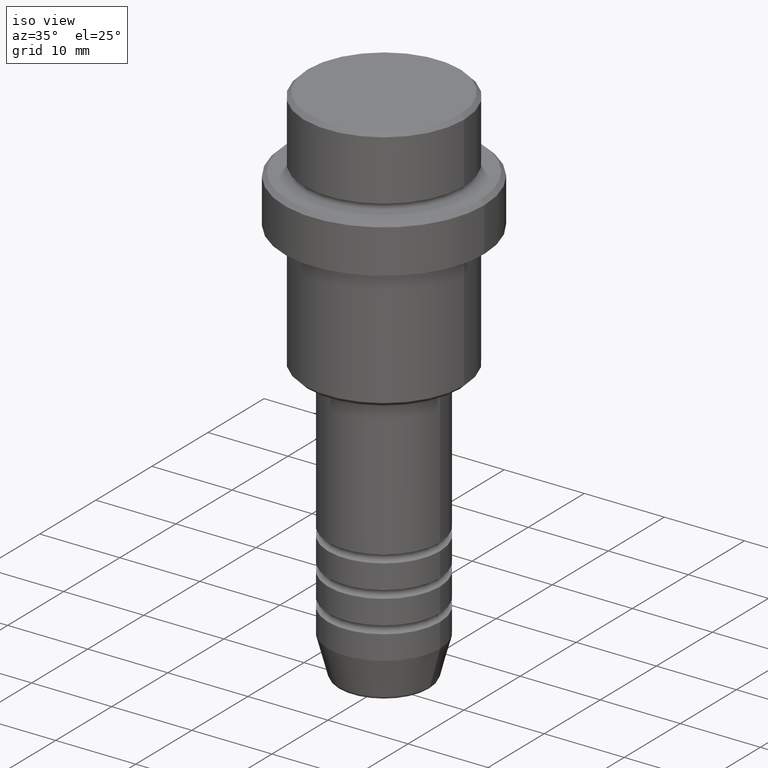
[diagram: clean part render]
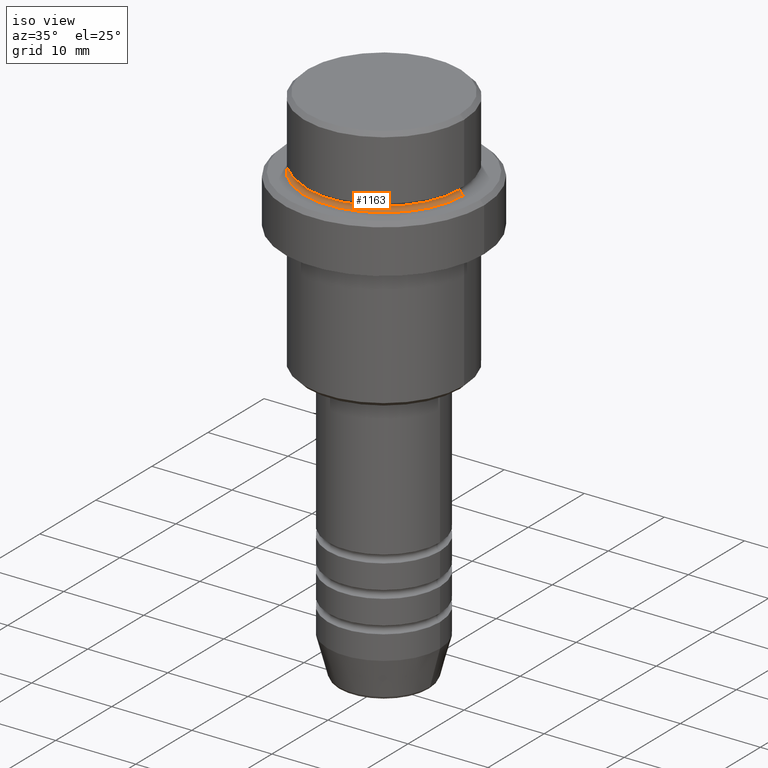
[diagram: same view with one face highlighted and labeled with its STEP entity id]
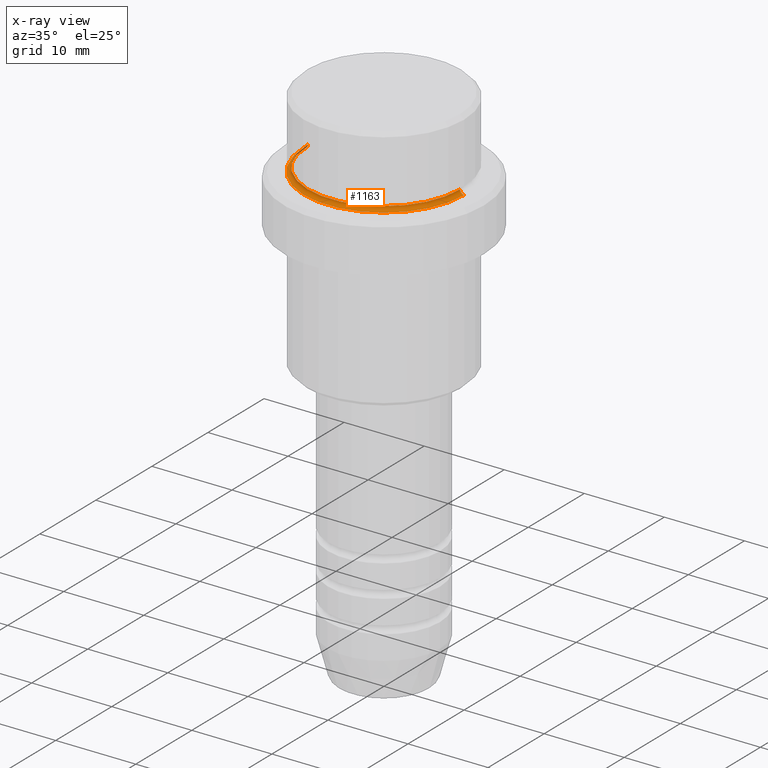
[diagram: x-ray of the same camera — body ghosted, the highlighted face saturated]
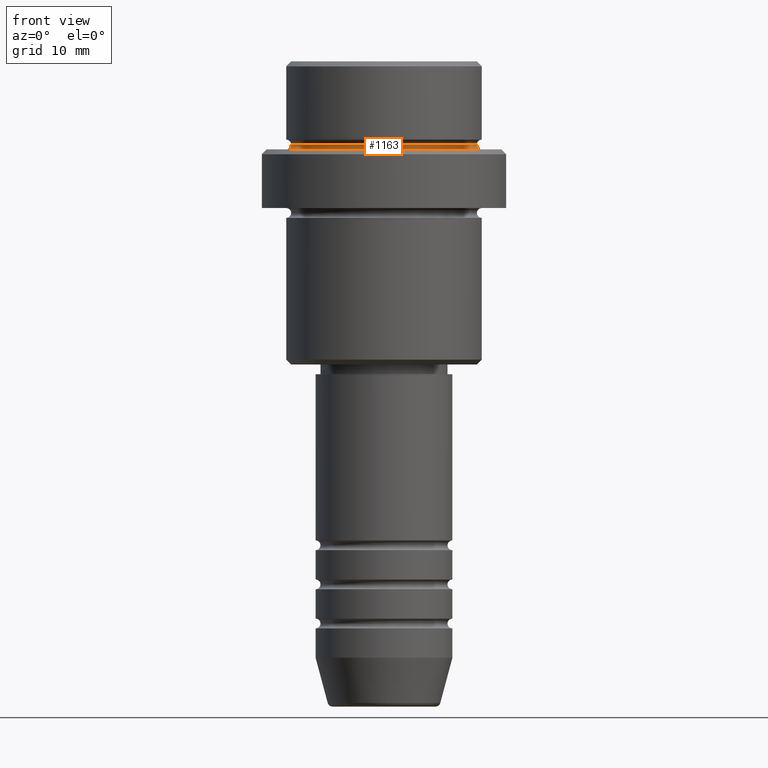
[diagram: same view with one face highlighted and labeled with its STEP entity id]
A machine part, iso view. The second image highlights one B-rep face of the part: STEP entity #1163.
The next image is the same camera in x-ray: the body ghosted, the highlighted face saturated — about 2% of this face is hidden behind the body in this view.
A second angle (front view) of the same face is appended — the face is thin or edge-on in the first view.
In plain terms, the highlighted toroidal blend (fillet) surface has major radius 10 mm and minor (blend) radius 0.5 mm.
Its self-contained STEP definition (entity closure, byte-faithful):
#51 = ORIENTED_EDGE ( 'NONE', *, *, #680, .F. ) ;
#66 = DIRECTION ( 'NONE',  ( 1.000000000000000000, 0.000000000000000000, 0.000000000000000000 ) ) ;
#90 = CARTESIAN_POINT ( 'NONE',  ( 9.999999999999994671, 0.000000000000000000, -8.500000000000000000 ) ) ;
#156 = CIRCLE ( 'NONE', #1231, 9.999999999999994671 ) ;
#174 = CARTESIAN_POINT ( 'NONE',  ( -9.999999999999994671, 1.224646799147352665E-15, -8.500000000000000000 ) ) ;
#182 = EDGE_CURVE ( 'NONE', #536, #684, #851, .T. ) ;
#198 = CARTESIAN_POINT ( 'NONE',  ( 0.000000000000000000, 0.000000000000000000, -8.500000000000000000 ) ) ;
#216 = DIRECTION ( 'NONE',  ( 0.000000000000000000, -1.000000000000000000, 0.000000000000000000 ) ) ;
#301 = DIRECTION ( 'NONE',  ( 1.000000000000000000, 0.000000000000000000, 0.000000000000000000 ) ) ;
#314 = TOROIDAL_SURFACE ( 'NONE', #359, 9.999999999999994671, 0.5000000000000000000 ) ;
#359 = AXIS2_PLACEMENT_3D ( 'NONE', #541, #980, #1304 ) ;
#432 = EDGE_CURVE ( 'NONE', #653, #546, #853, .T. ) ;
#532 = DIRECTION ( 'NONE',  ( 0.000000000000000000, 0.000000000000000000, -1.000000000000000000 ) ) ;
#536 = VERTEX_POINT ( 'NONE', #1026 ) ;
#541 = CARTESIAN_POINT ( 'NONE',  ( 0.000000000000000000, 0.000000000000000000, -8.500000000000000000 ) ) ;
#546 = VERTEX_POINT ( 'NONE', #918 ) ;
#562 = EDGE_LOOP ( 'NONE', ( #51, #916, #805, #1376 ) ) ;
#653 = VERTEX_POINT ( 'NONE', #1297 ) ;
#680 = EDGE_CURVE ( 'NONE', #653, #536, #809, .T. ) ;
#684 = VERTEX_POINT ( 'NONE', #728 ) ;
#728 = CARTESIAN_POINT ( 'NONE',  ( 9.999999999999994671, 0.000000000000000000, -9.000000000000001776 ) ) ;
#805 = ORIENTED_EDGE ( 'NONE', *, *, #1330, .F. ) ;
#809 = CIRCLE ( 'NONE', #1068, 9.499999999999994671 ) ;
#827 = AXIS2_PLACEMENT_3D ( 'NONE', #90, #216, #532 ) ;
#838 = DIRECTION ( 'NONE',  ( -0.000000000000000000, -0.000000000000000000, 1.000000000000000000 ) ) ;
#851 = CIRCLE ( 'NONE', #827, 0.5000000000000004441 ) ;
#853 = CIRCLE ( 'NONE', #1363, 0.5000000000000004441 ) ;
#916 = ORIENTED_EDGE ( 'NONE', *, *, #432, .T. ) ;
#918 = CARTESIAN_POINT ( 'NONE',  ( -9.999999999999994671, 1.224646799147352665E-15, -9.000000000000001776 ) ) ;
#936 = CARTESIAN_POINT ( 'NONE',  ( 0.000000000000000000, 0.000000000000000000, -9.000000000000001776 ) ) ;
#980 = DIRECTION ( 'NONE',  ( -0.000000000000000000, -0.000000000000000000, 1.000000000000000000 ) ) ;
#1026 = CARTESIAN_POINT ( 'NONE',  ( 9.499999999999994671, 0.000000000000000000, -8.500000000000000000 ) ) ;
#1052 = DIRECTION ( 'NONE',  ( 0.000000000000000000, 0.000000000000000000, -1.000000000000000000 ) ) ;
#1068 = AXIS2_PLACEMENT_3D ( 'NONE', #198, #838, #301 ) ;
#1093 = FACE_OUTER_BOUND ( 'NONE', #562, .T. ) ;
#1163 = ADVANCED_FACE ( 'NONE', ( #1093 ), #314, .F. ) ;
#1185 = DIRECTION ( 'NONE',  ( -1.000000000000000000, 1.224646799147353454E-16, 0.000000000000000000 ) ) ;
#1231 = AXIS2_PLACEMENT_3D ( 'NONE', #936, #1052, #66 ) ;
#1284 = DIRECTION ( 'NONE',  ( 1.224646799147353207E-16, 1.000000000000000000, 0.000000000000000000 ) ) ;
#1297 = CARTESIAN_POINT ( 'NONE',  ( -9.499999999999994671, 1.194030629168668681E-15, -8.500000000000000000 ) ) ;
#1304 = DIRECTION ( 'NONE',  ( 1.000000000000000000, 0.000000000000000000, 0.000000000000000000 ) ) ;
#1330 = EDGE_CURVE ( 'NONE', #684, #546, #156, .T. ) ;
#1363 = AXIS2_PLACEMENT_3D ( 'NONE', #174, #1284, #1185 ) ;
#1376 = ORIENTED_EDGE ( 'NONE', *, *, #182, .F. ) ;